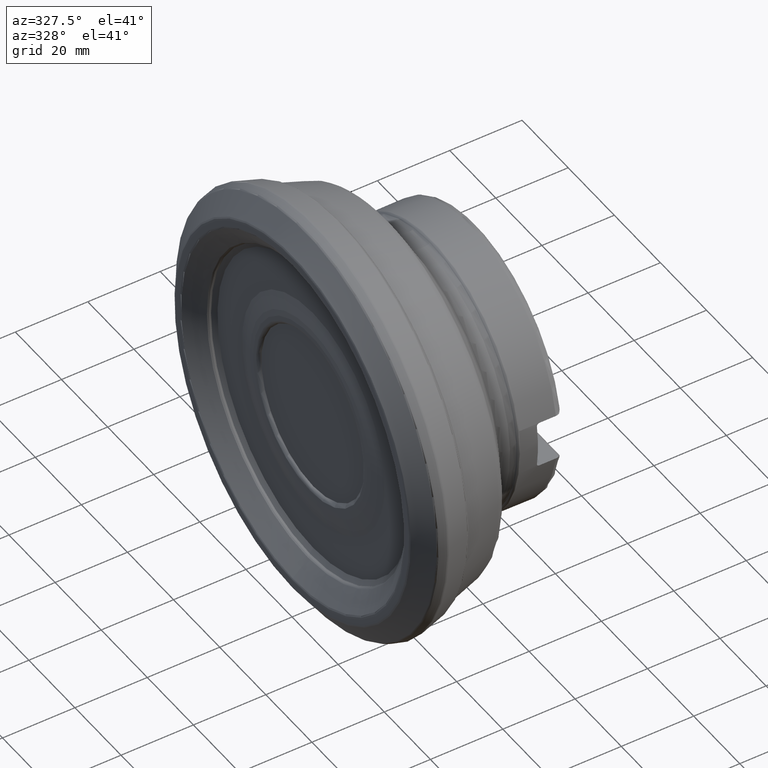
[diagram: clean part render]
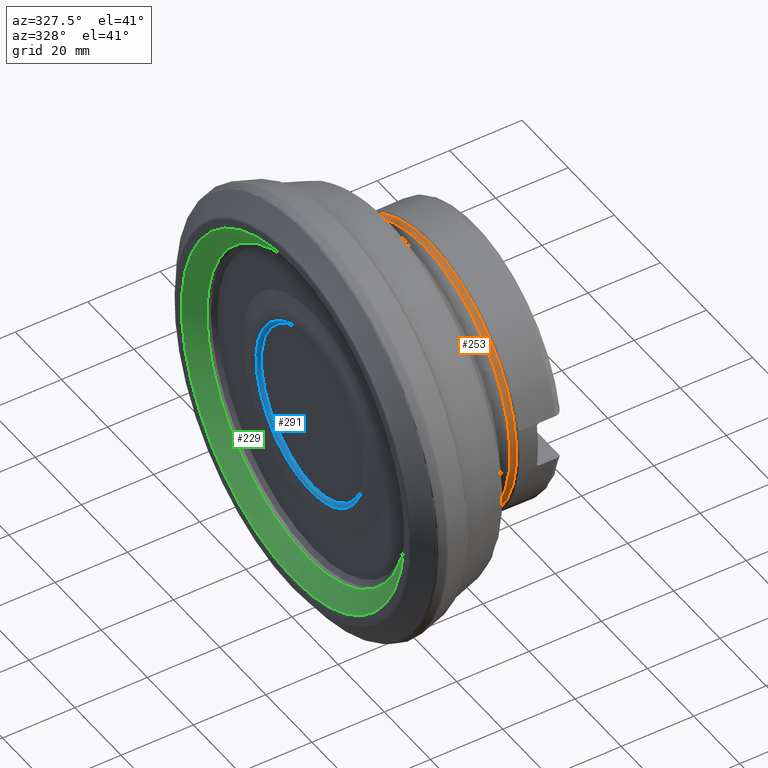
[diagram: same view with three faces highlighted in distinct colors, each labeled with its STEP entity id]
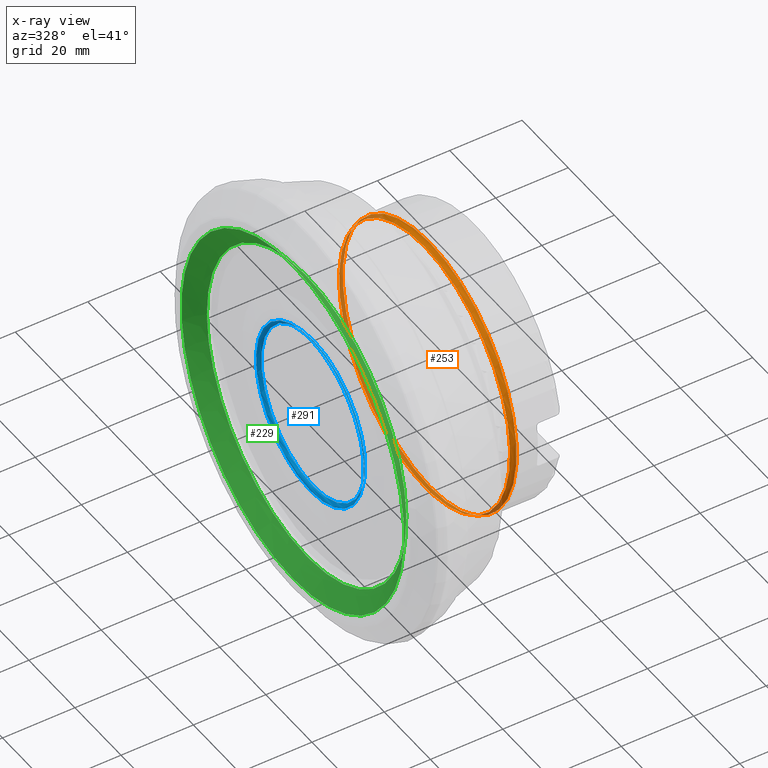
[diagram: x-ray of the same camera — body ghosted, the three highlighted faces saturated]
A machine part, auxiliary view with three faces highlighted in distinct colors.
The next image is the same camera in x-ray (body ghosted, the three faces saturated) — at least one of them is partly hidden behind the body in this view.
Their STEP definitions:

[orange] entity #253 — the highlighted toroidal blend (fillet) surface has major radius 39.1 mm and minor (blend) radius 2 mm.
#114=TOROIDAL_SURFACE('',#1117,39.1,2.);
#253=ADVANCED_FACE('',(#427,#428),#114,.F.);
#427=FACE_BOUND('',#525,.T.);
#428=FACE_BOUND('',#526,.T.);
#525=EDGE_LOOP('',(#663));
#526=EDGE_LOOP('',(#664));
#663=ORIENTED_EDGE('',*,*,#954,.F.);
#664=ORIENTED_EDGE('',*,*,#955,.F.);
#860=VERTEX_POINT('',#1719);
#861=VERTEX_POINT('',#1721);
#954=EDGE_CURVE('',#860,#860,#1046,.T.);
#955=EDGE_CURVE('',#861,#861,#1047,.T.);
#1046=CIRCLE('',#1115,37.6857864376269);
#1047=CIRCLE('',#1116,37.1);
#1115=AXIS2_PLACEMENT_3D('',#1718,#1292,#1293);
#1116=AXIS2_PLACEMENT_3D('',#1720,#1294,#1295);
#1117=AXIS2_PLACEMENT_3D('',#1722,#1296,#1297);
#1292=DIRECTION('',(1.,0.,0.));
#1293=DIRECTION('',(0.,0.,-1.));
#1294=DIRECTION('',(-1.,0.,0.));
#1295=DIRECTION('',(0.,0.,1.));
#1296=DIRECTION('',(-1.,0.,0.));
#1297=DIRECTION('',(0.,0.,1.));
#1718=CARTESIAN_POINT('',(38.0218162033568,0.,0.));
#1719=CARTESIAN_POINT('',(38.0218162033568,0.,-37.6857864376269));
#1720=CARTESIAN_POINT('',(36.6076026409837,0.,0.));
#1721=CARTESIAN_POINT('',(36.6076026409837,0.,37.1));
#1722=CARTESIAN_POINT('',(36.6076026409837,0.,0.));

[blue] entity #291 — the highlighted toroidal blend (fillet) surface has major radius 23.5 mm and minor (blend) radius 1 mm.
#121=TOROIDAL_SURFACE('',#1183,23.5,1.);
#291=ADVANCED_FACE('',(#469,#470),#121,.T.);
#469=FACE_BOUND('',#584,.T.);
#470=FACE_BOUND('',#585,.T.);
#584=EDGE_LOOP('',(#808));
#585=EDGE_LOOP('',(#809));
#808=ORIENTED_EDGE('',*,*,#1014,.F.);
#809=ORIENTED_EDGE('',*,*,#1015,.F.);
#902=VERTEX_POINT('',#2036);
#903=VERTEX_POINT('',#2038);
#1014=EDGE_CURVE('',#902,#902,#1074,.T.);
#1015=EDGE_CURVE('',#903,#903,#1075,.T.);
#1074=CIRCLE('',#1181,23.5);
#1075=CIRCLE('',#1182,22.5109956566538);
#1181=AXIS2_PLACEMENT_3D('',#2035,#1440,#1441);
#1182=AXIS2_PLACEMENT_3D('',#2037,#1442,#1443);
#1183=AXIS2_PLACEMENT_3D('',#2039,#1444,#1445);
#1440=DIRECTION('',(1.,0.,0.));
#1441=DIRECTION('',(0.,0.,-1.));
#1442=DIRECTION('',(-1.,0.,0.));
#1443=DIRECTION('',(0.,0.,1.));
#1444=DIRECTION('',(1.,0.,0.));
#1445=DIRECTION('',(0.,0.,-1.));
#2035=CARTESIAN_POINT('',(5.,0.,0.));
#2036=CARTESIAN_POINT('',(5.,0.,-23.5));
#2037=CARTESIAN_POINT('',(5.8521135271825,0.,0.));
#2038=CARTESIAN_POINT('',(5.8521135271825,0.,22.5109956566538));
#2039=CARTESIAN_POINT('',(6.,0.,0.));

[green] entity #229 — the highlighted face is a SurfaceOfRevolution surface.
#229=ADVANCED_FACE('',(#391,#392),#299,.F.);
#299=SURFACE_OF_REVOLUTION('',#339,#319);
#319=AXIS1_PLACEMENT('',#1496,#1208);
#339=B_SPLINE_CURVE_WITH_KNOTS('',3,(#1491,#1492,#1493,#1494,#1495),
 .UNSPECIFIED.,.F.,.F.,(4,1,4),(0.,0.5,1.),.UNSPECIFIED.);
#391=FACE_BOUND('',#483,.T.);
#392=FACE_BOUND('',#484,.T.);
#483=EDGE_LOOP('',(#599));
#484=EDGE_LOOP('',(#600));
#599=ORIENTED_EDGE('',*,*,#910,.T.);
#600=ORIENTED_EDGE('',*,*,#911,.F.);
#820=VERTEX_POINT('',#1482);
#821=VERTEX_POINT('',#1490);
#910=EDGE_CURVE('',#820,#820,#1022,.T.);
#911=EDGE_CURVE('',#821,#821,#1023,.T.);
#1022=CIRCLE('',#1083,43.2557769996908);
#1023=CIRCLE('',#1084,48.3041454426272);
#1083=AXIS2_PLACEMENT_3D('',#1481,#1203,#1204);
#1084=AXIS2_PLACEMENT_3D('',#1489,#1206,#1207);
#1203=DIRECTION('',(1.,0.,0.));
#1204=DIRECTION('',(0.,0.,-1.));
#1206=DIRECTION('',(1.,0.,0.));
#1207=DIRECTION('',(0.,0.,-1.));
#1208=DIRECTION('',(1.,0.,0.));
#1481=CARTESIAN_POINT('',(4.01896603602087,0.,0.));
#1482=CARTESIAN_POINT('',(4.01896603602087,0.,-43.2557769996908));
#1489=CARTESIAN_POINT('',(0.187348895711287,0.,0.));
#1490=CARTESIAN_POINT('',(0.187348895711287,0.,-48.3041454426272));
#1491=CARTESIAN_POINT('',(0.187348895711282,-47.7120614875982,7.53987105633357));
#1492=CARTESIAN_POINT('',(0.846618438660362,-46.8525300974397,7.42915618032662));
#1493=CARTESIAN_POINT('',(2.15925495847564,-45.1033374581719,7.41027998646628));
#1494=CARTESIAN_POINT('',(3.41579398568135,-43.3542037435503,7.79024419806023));
#1495=CARTESIAN_POINT('',(4.01896603602087,-42.4947312780381,8.07836972750757));
#1496=CARTESIAN_POINT('',(0.,0.,0.));